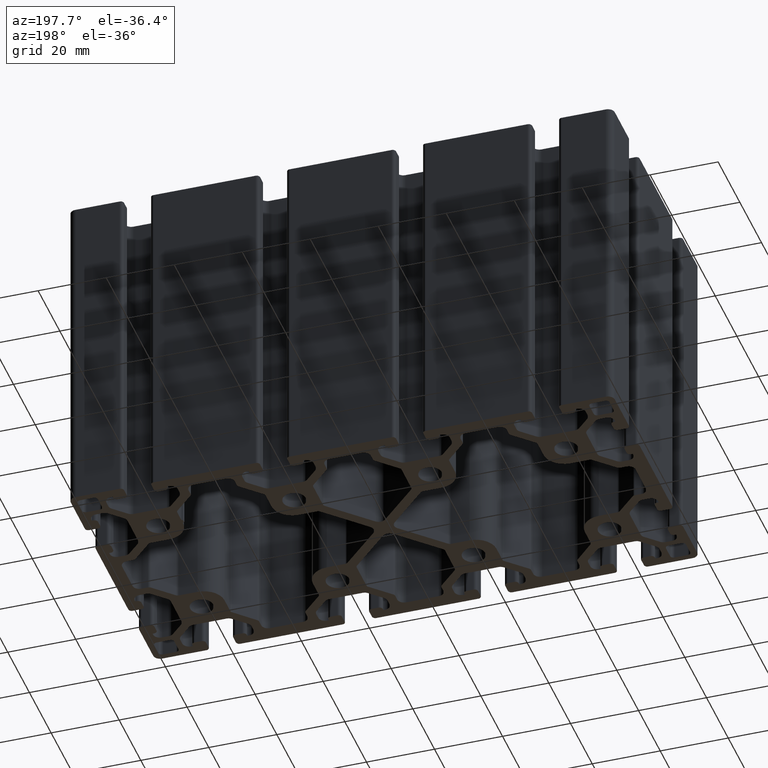
[diagram: clean part render]
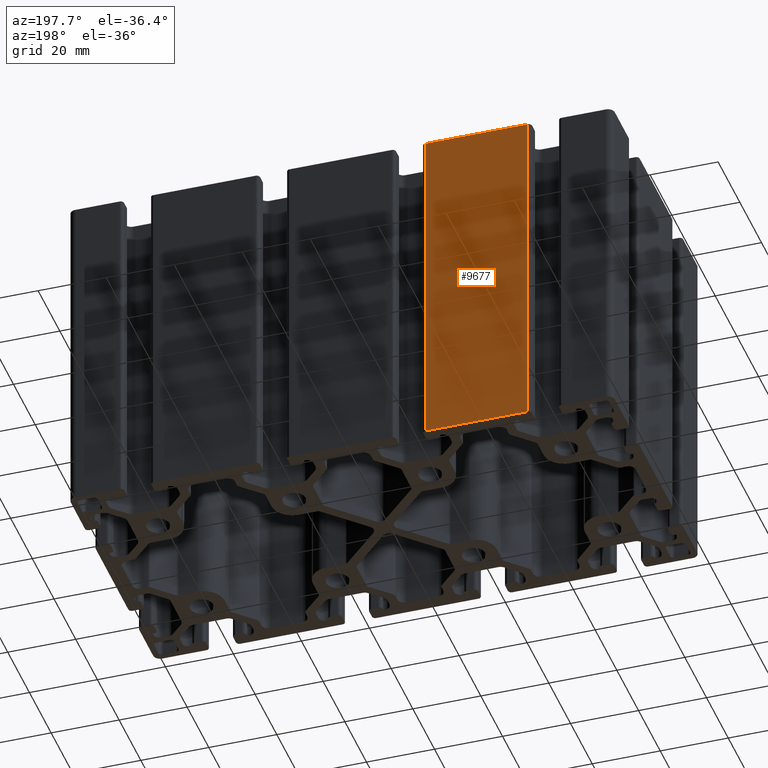
[diagram: same view with one face highlighted and labeled with its STEP entity id]
A machine part, auxiliary view. The second image highlights one B-rep face of the part: STEP entity #9677.
In plain terms, the highlighted planar face has unit normal (0, -1, 0).
Its self-contained STEP definition (entity closure, byte-faithful):
#31=PLANE('',#10668);
#358=FACE_OUTER_BOUND('',#903,.T.);
#903=EDGE_LOOP('',(#7535,#7536,#7537,#7538));
#1390=LINE('',#14262,#2407);
#1795=LINE('',#15777,#2812);
#1924=LINE('',#16217,#2941);
#1925=LINE('',#16219,#2942);
#2407=VECTOR('',#11255,30.);
#2812=VECTOR('',#12370,30.);
#2941=VECTOR('',#12739,100.);
#2942=VECTOR('',#12742,100.);
#3944=VERTEX_POINT('',#14259);
#3945=VERTEX_POINT('',#14261);
#4699=VERTEX_POINT('',#15774);
#4700=VERTEX_POINT('',#15776);
#4950=EDGE_CURVE('',#3944,#3945,#1390,.T.);
#5709=EDGE_CURVE('',#4700,#4699,#1795,.T.);
#5932=EDGE_CURVE('',#3944,#4700,#1924,.T.);
#5933=EDGE_CURVE('',#3945,#4699,#1925,.T.);
#7535=ORIENTED_EDGE('',*,*,#5709,.T.);
#7536=ORIENTED_EDGE('',*,*,#5933,.F.);
#7537=ORIENTED_EDGE('',*,*,#4950,.F.);
#7538=ORIENTED_EDGE('',*,*,#5932,.T.);
#9677=ADVANCED_FACE('',(#358),#31,.F.);
#10668=AXIS2_PLACEMENT_3D('',#16218,#12740,#12741);
#11255=DIRECTION('',(-1.,0.,0.));
#12370=DIRECTION('',(-1.,0.,0.));
#12739=DIRECTION('',(0.,0.,-1.));
#12740=DIRECTION('center_axis',(0.,-1.,0.));
#12741=DIRECTION('ref_axis',(0.,0.,-1.));
#12742=DIRECTION('',(0.,0.,-1.));
#14259=CARTESIAN_POINT('',(-22.0502525310284,40.0000000155013,100.));
#14261=CARTESIAN_POINT('',(-52.0502525310284,40.0000000155013,100.));
#14262=CARTESIAN_POINT('',(-22.0502525310284,40.0000000155013,100.));
#15774=CARTESIAN_POINT('',(-52.0502525310284,40.0000000155013,0.));
#15776=CARTESIAN_POINT('',(-22.0502525310284,40.0000000155013,0.));
#15777=CARTESIAN_POINT('',(-22.0502525310284,40.0000000155013,0.));
#16217=CARTESIAN_POINT('',(-22.0502525310284,40.0000000155013,100.));
#16218=CARTESIAN_POINT('Origin',(-53.5502525310284,40.0000000155013,-5.));
#16219=CARTESIAN_POINT('',(-52.0502525310284,40.0000000155013,100.));